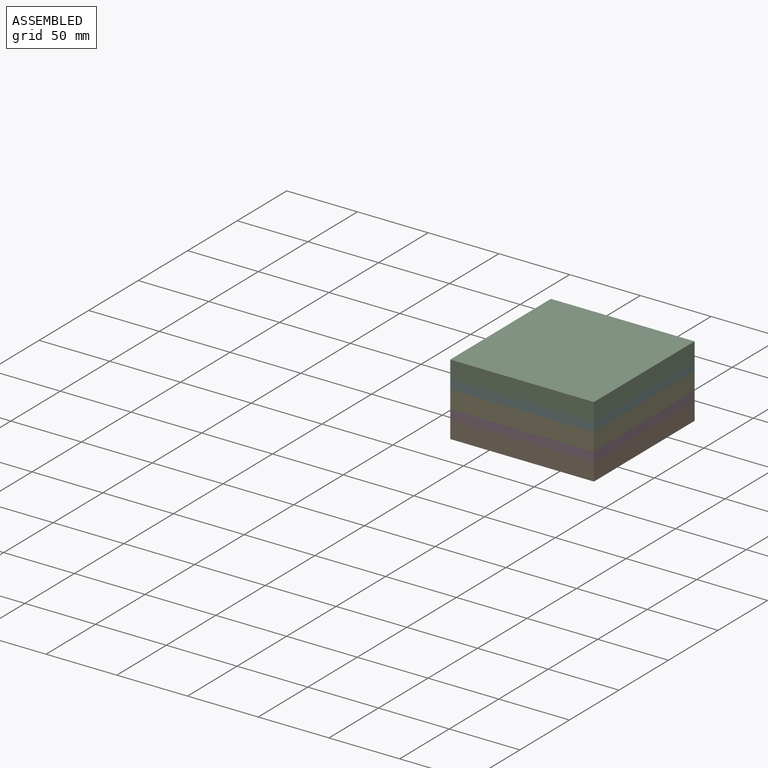
[diagram: assembled view]
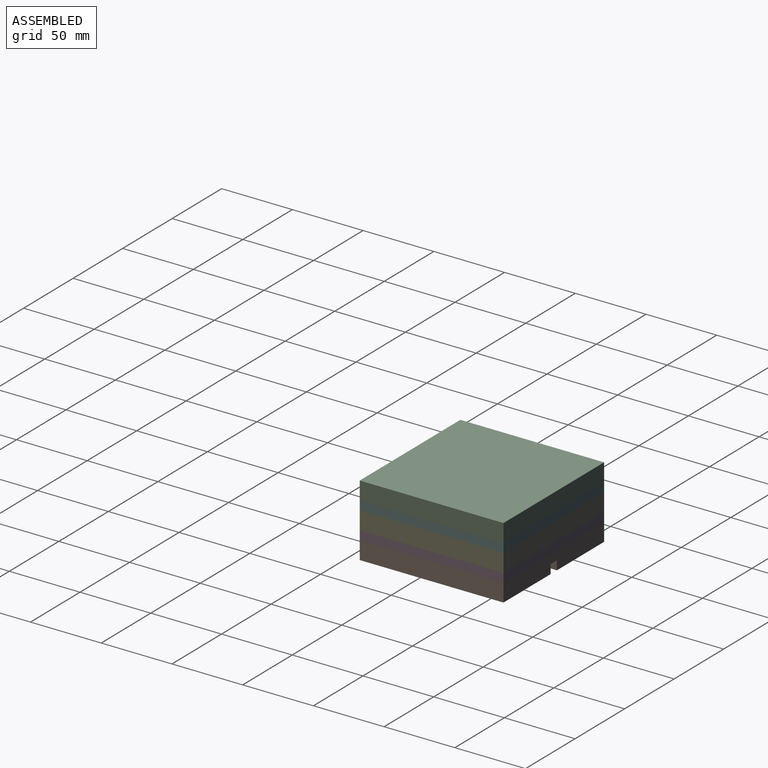
[diagram: assembled view, second angle]
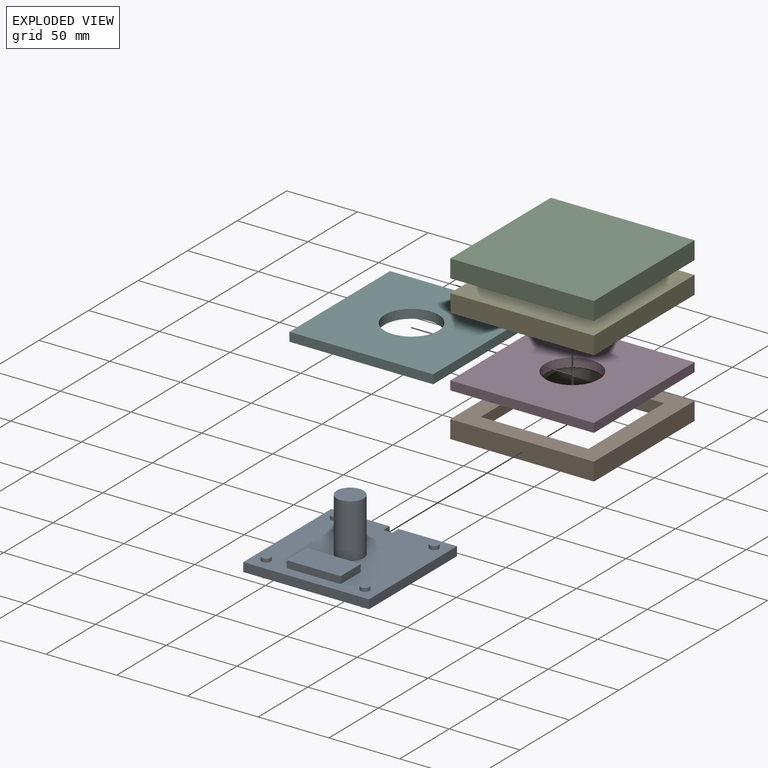
[diagram: exploded view]
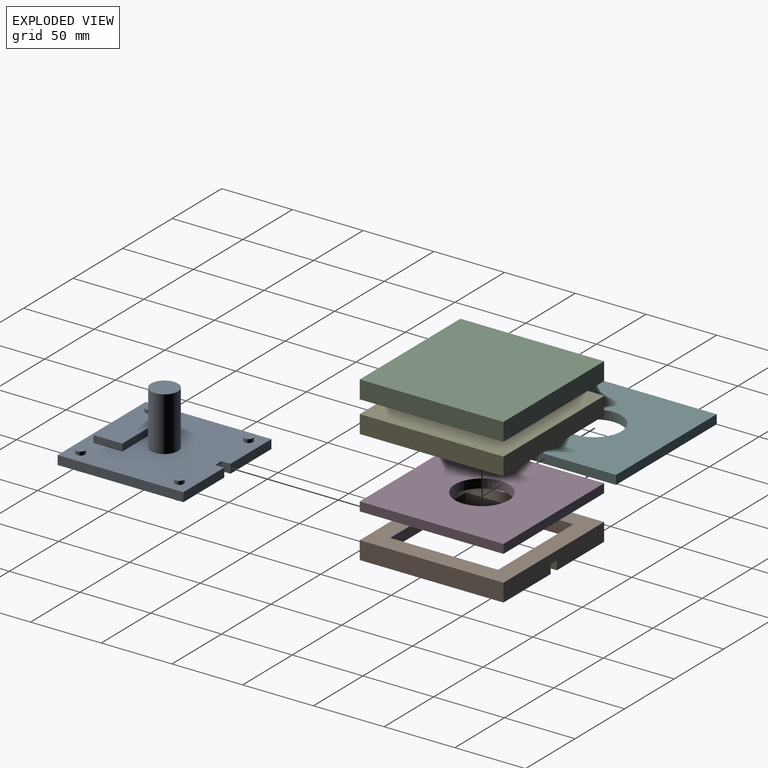
[diagram: exploded view, second angle]
ASSEMBLY  parts=6 mates=15
PART A: 33 faces, bbox 88.9x88.9x48.3 mm
  f0: plane 41.28x6.35mm, normal (0,-1,0), area 262.1mm2, adj f1,f2,f6,f31
  f1: plane 88.9x88.9mm, normal (0,0,1), area 6677mm2, adj f0,f3,f4,f5,f6,f7,f9,f10
  f2: plane 88.9x88.9mm, normal (0,0,-1), area 7736.2mm2, adj f0,f3,f4,f5,f6,f15,f19,f23
  f3: plane 88.9x6.35mm, normal (0,1,0), area 564.5mm2, adj f1,f2,f4,f6
  f4: plane 88.9x6.35mm, normal (-1,0,0), area 564.5mm2, adj f1,f2,f3,f5
  f5: plane 41.28x6.35mm, normal (0,-1,0), area 262.1mm2, adj f1,f2,f4,f30
  f6: plane 88.9x6.35mm, normal (1,0,0), area 564.5mm2, adj f0,f1,f2,f3
  f7: cylinder r=9.53mm len=38.1mm, axis (0,0,-1), area 2280.2mm2, adj f1,f8
  f8: plane 19.05x19.05mm, normal (0,0,1), area 285mm2, adj f7
  f9: plane 20.32x5.08mm, normal (-1,0,0), area 103.2mm2, adj f1,f10,f12,f13
  f10: plane 38.1x5.08mm, normal (0,-1,0), area 193.5mm2, adj f1,f9,f11,f13
  f11: plane 20.32x5.08mm, normal (1,0,0), area 103.2mm2, adj f1,f10,f12,f13
  f12: plane 38.1x5.08mm, normal (0,1,0), area 193.5mm2, adj f1,f9,f11,f13
  f13: plane 38.1x20.32mm, normal (0,0,1), area 774.2mm2, adj f9,f10,f11,f12
  f14: plane 6.35x6.35mm, normal (0,0,-1), area 31.7mm2, adj f15
  f15: cylinder r=3.17mm len=6.35mm, axis (0,0,1), area 76mm2, adj f2,f14
  f16: cylinder r=3.17mm len=6.35mm, axis (0,0,1), area 50.7mm2, adj f1,f17
  f17: plane 6.35x6.35mm, normal (0,0,1), area 31.7mm2, adj f16
  f18: plane 6.35x6.35mm, normal (0,0,-1), area 31.7mm2, adj f19
  f19: cylinder r=3.17mm len=6.35mm, axis (0,0,1), area 76mm2, adj f2,f18
  f20: cylinder r=3.17mm len=6.35mm, axis (0,0,1), area 50.7mm2, adj f1,f21
  f21: plane 6.35x6.35mm, normal (0,0,1), area 31.7mm2, adj f20
  f22: plane 6.35x6.35mm, normal (0,0,-1), area 31.7mm2, adj f23
  f23: cylinder r=3.17mm len=6.35mm, axis (0,0,1), area 76mm2, adj f2,f22
  f24: cylinder r=3.17mm len=6.35mm, axis (0,0,1), area 50.7mm2, adj f1,f25
  f25: plane 6.35x6.35mm, normal (0,0,1), area 31.7mm2, adj f24
  f26: plane 6.35x6.35mm, normal (0,0,-1), area 31.7mm2, adj f27
  f27: cylinder r=3.17mm len=6.35mm, axis (0,0,1), area 76mm2, adj f2,f26
  f28: cylinder r=3.17mm len=6.35mm, axis (0,0,1), area 50.7mm2, adj f1,f29
  f29: plane 6.35x6.35mm, normal (0,0,1), area 31.7mm2, adj f28
  f30: plane 6.35x6.35mm, normal (1,0,0), area 40.3mm2, adj f1,f2,f5,f32
  f31: plane 6.35x6.35mm, normal (-1,0,0), area 40.3mm2, adj f0,f1,f2,f32
  f32: plane 6.35x6.35mm, normal (0,-1,0), area 40.3mm2, adj f1,f2,f30,f31
PART B: 18 faces, bbox 101.6x101.6x12.7 mm
  f0: plane 41.28x6.35mm, normal (0,-1,0), area 262.1mm2, adj f2,f13,f15,f17
  f1: plane 101.6x12.7mm, normal (0,1,0), area 1250mm2, adj f2,f6,f8,f10,f15,f16,f17
  f2: plane 95.25x88.9mm, normal (0,0,-1), area 2137.1mm2, adj f0,f1,f3,f4,f5,f9,f11,f12
  f3: plane 76.2x6.35mm, normal (0,1,0), area 483.9mm2, adj f2,f4,f9,f10
  f4: plane 76.2x6.35mm, normal (1,0,0), area 483.9mm2, adj f2,f3,f5,f10
  f5: plane 76.2x6.35mm, normal (0,-1,0), area 483.9mm2, adj f2,f4,f9,f10
  f6: plane 101.6x12.7mm, normal (-1,0,0), area 1290.3mm2, adj f1,f7,f10,f15
  f7: plane 101.6x12.7mm, normal (0,-1,0), area 1290.3mm2, adj f6,f8,f10,f15
  f8: plane 101.6x12.7mm, normal (1,0,0), area 1290.3mm2, adj f1,f7,f10,f15
  f9: plane 76.2x6.35mm, normal (-1,0,0), area 483.9mm2, adj f2,f3,f5,f10
  f10: plane 101.6x101.6mm, normal (0,0,1), area 4516.1mm2, adj f1,f3,f4,f5,f6,f7,f8,f9
  f11: plane 88.9x6.35mm, normal (1,0,0), area 564.5mm2, adj f2,f12,f14,f15
  f12: plane 41.28x6.35mm, normal (0,-1,0), area 262.1mm2, adj f2,f11,f15,f16
  f13: plane 88.9x6.35mm, normal (-1,0,0), area 564.5mm2, adj f0,f2,f14,f15
  f14: plane 88.9x6.35mm, normal (0,1,0), area 564.5mm2, adj f2,f11,f13,f15
  f15: plane 101.6x101.6mm, normal (0,0,-1), area 2379mm2, adj f0,f1,f6,f7,f8,f11,f12,f13
  f16: plane 6.35x6.35mm, normal (1,0,0), area 40.3mm2, adj f1,f2,f12,f15
  f17: plane 6.35x6.35mm, normal (-1,0,0), area 40.3mm2, adj f0,f1,f2,f15
PART C: 8 faces, bbox 101.6x101.6x12.7 mm
  f0: plane 101.6x12.7mm, normal (-1,0,0), area 1290.3mm2, adj f1,f3,f4,f5
  f1: plane 101.6x12.7mm, normal (0,-1,0), area 1290.3mm2, adj f0,f2,f4,f5
  f2: plane 101.6x12.7mm, normal (1,0,0), area 1290.3mm2, adj f1,f3,f4,f5
  f3: plane 101.6x12.7mm, normal (0,1,0), area 1290.3mm2, adj f0,f2,f4,f5
  f4: plane 101.6x101.6mm, normal (0,0,1), area 10037.5mm2, adj f0,f1,f2,f3,f6
  f5: plane 101.6x101.6mm, normal (0,0,-1), area 10322.6mm2, adj f0,f1,f2,f3
  f6: cylinder r=9.53mm len=19.05mm, axis (0,0,1), area 380mm2, adj f4,f7
  f7: plane 19.05x19.05mm, normal (0,0,1), area 285mm2, adj f6
PART D: 7 faces, bbox 101.6x101.6x6.4 mm
  f0: plane 101.6x6.35mm, normal (0,1,0), area 645.2mm2, adj f1,f4,f5,f6
  f1: plane 101.6x6.35mm, normal (-1,0,0), area 645.2mm2, adj f0,f2,f5,f6
  f2: plane 101.6x6.35mm, normal (0,-1,0), area 645.2mm2, adj f1,f4,f5,f6
  f3: cylinder r=19.05mm len=38.1mm, axis (0,0,-1), area 760.1mm2, adj f5,f6
  f4: plane 101.6x6.35mm, normal (1,0,0), area 645.2mm2, adj f0,f2,f5,f6
  f5: plane 101.6x101.6mm, normal (0,0,1), area 9182.5mm2, adj f0,f1,f2,f3,f4
  f6: plane 101.6x101.6mm, normal (0,0,-1), area 9182.5mm2, adj f0,f1,f2,f3,f4
PART E: 7 faces, bbox 101.6x101.6x12.7 mm
  f0: plane 101.6x12.7mm, normal (0,1,0), area 1290.3mm2, adj f1,f4,f5,f6
  f1: plane 101.6x12.7mm, normal (-1,0,0), area 1290.3mm2, adj f0,f2,f5,f6
  f2: plane 101.6x12.7mm, normal (0,-1,0), area 1290.3mm2, adj f1,f4,f5,f6
  f3: cylinder r=19.05mm len=38.1mm, axis (0,0,-1), area 1520.1mm2, adj f5,f6
  f4: plane 101.6x12.7mm, normal (1,0,0), area 1290.3mm2, adj f0,f2,f5,f6
  f5: plane 101.6x101.6mm, normal (0,0,1), area 9182.5mm2, adj f0,f1,f2,f3,f4
  f6: plane 101.6x101.6mm, normal (0,0,-1), area 9182.5mm2, adj f0,f1,f2,f3,f4
PART F: same geometry as D
PLACE A rot(axis=(0,0,-1),180deg) t=(-19.02,65.79,-58.69)mm
PLACE B t=(-69.82,14.99,-52.34)mm
PLACE C rot(axis=(-0.71,-0.71,0),180deg) t=(-69.82,14.99,-7.89)mm
PLACE D rot(axis=(-1,0,0),180deg) t=(-19.02,65.79,-39.64)mm
PLACE E rot(axis=(0,1,0),180deg) t=(-19.02,65.79,-26.94)mm
PLACE F rot(axis=(0,1,0),180deg) t=(-19.02,65.79,-20.59)mm
MATE planar A.f5 <-> B.f0  axis (0,1,0) through (4.79,110.24,-55.52)mm
MATE planar E.f3 <-> D.f6  axis (0,0,-1) through (-19.02,65.79,-39.64)mm
MATE planar D.f3 <-> B.f10  axis (0,0,-1) through (-19.02,65.79,-45.99)mm
MATE planar B.f2 <-> A.f1  axis (0,0,-1) through (-15.85,110.24,-52.34)mm
MATE planar E.f1 <-> F.f1  axis (1,0,0) through (31.78,65.79,-33.29)mm
MATE planar A.f4 <-> B.f13  axis (1,0,0) through (25.43,65.79,-55.52)mm
MATE planar C.f6 <-> F.f3  axis (0,0,-1) through (-19.02,65.79,-20.59)mm
MATE planar E.f3 <-> F.f5  axis (0,0,1) through (-19.02,65.79,-26.94)mm
MATE planar D.f2 <-> B.f1  axis (0,1,0) through (-19.02,116.59,-42.82)mm
MATE planar E.f2 <-> D.f0  axis (0,-1,0) through (-19.02,14.99,-33.29)mm
MATE planar F.f2 <-> E.f2  axis (0,-1,0) through (-19.02,14.99,-23.77)mm
MATE planar E.f1 <-> D.f4  axis (1,0,0) through (31.78,65.79,-33.29)mm
MATE planar D.f1 <-> B.f6  axis (-1,0,0) through (-69.82,65.79,-42.82)mm
MATE planar C.f1 <-> F.f4  axis (-1,0,0) through (-69.82,65.79,-14.24)mm
MATE planar C.f0 <-> F.f2  axis (0,-1,0) through (-19.02,14.99,-14.24)mm
